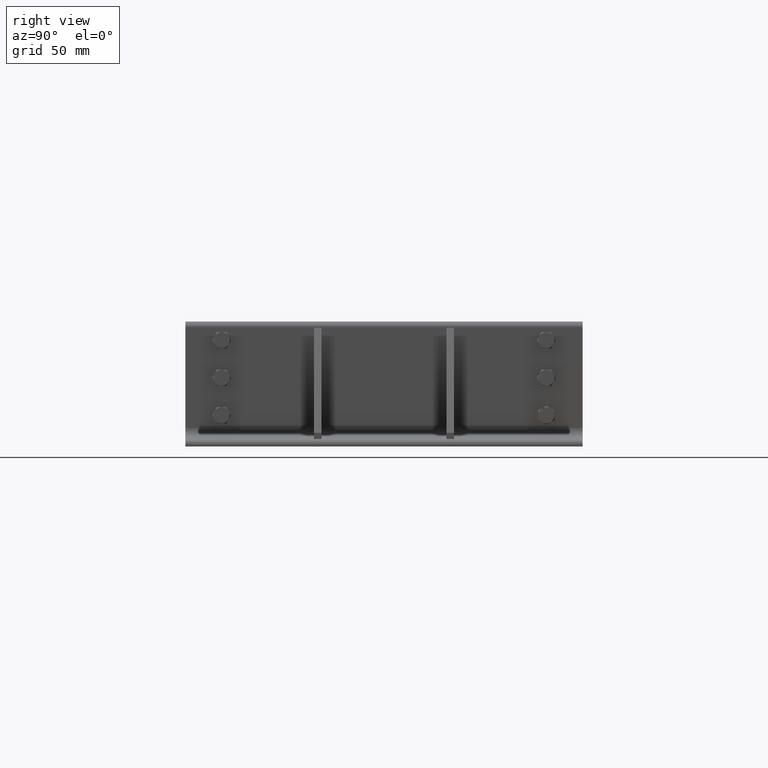
[diagram: clean part render]
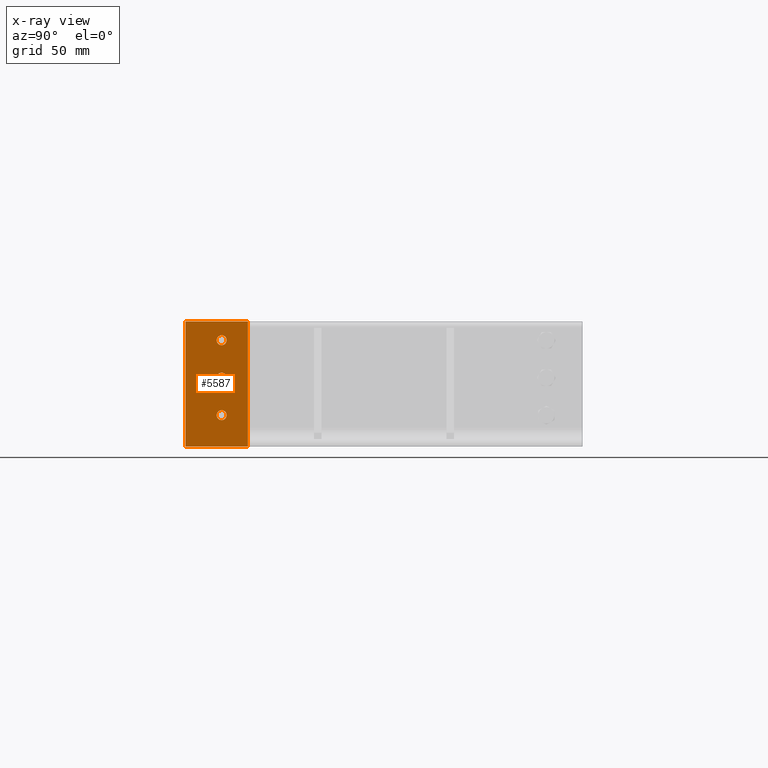
[diagram: x-ray — body ghosted, one internal face saturated and labeled with its STEP entity id]
A machine part, right view, then the same camera in x-ray: the body is ghosted and one INTERNAL B-rep face — a face not visible from any outside direction — is saturated and labeled: STEP entity #5587.
In plain terms, the highlighted planar face has unit normal (1, -0, 0).
Its self-contained STEP definition (entity closure, byte-faithful):
#5375=CARTESIAN_POINT('',(30.999999999999996,0.35,3.999999999999997));
#5376=VERTEX_POINT('',#5375);
#5377=CARTESIAN_POINT('',(34.999999999999993,0.350000000000001,3.999999999999997));
#5378=DIRECTION('',(0.0,-1.0,0.0));
#5379=DIRECTION('',(-1.0,0.0,0.0));
#5380=AXIS2_PLACEMENT_3D('',#5377,#5378,#5379);
#5381=CIRCLE('',#5380,4.0);
#5382=EDGE_CURVE('',#5376,#5376,#5381,.T.);
#5403=CARTESIAN_POINT('',(0.999999999999996,0.35,4.000000000000007));
#5404=VERTEX_POINT('',#5403);
#5405=CARTESIAN_POINT('',(4.999999999999996,0.350000000000001,4.000000000000007));
#5406=DIRECTION('',(0.0,-1.0,0.0));
#5407=DIRECTION('',(-1.0,0.0,0.0));
#5408=AXIS2_PLACEMENT_3D('',#5405,#5406,#5407);
#5409=CIRCLE('',#5408,4.0);
#5410=EDGE_CURVE('',#5404,#5404,#5409,.T.);
#5431=CARTESIAN_POINT('',(-29.000000000000004,0.35,4.000000000000016));
#5432=VERTEX_POINT('',#5431);
#5433=CARTESIAN_POINT('',(-25.000000000000004,0.350000000000001,4.000000000000016));
#5434=DIRECTION('',(0.0,-1.0,0.0));
#5435=DIRECTION('',(-1.0,0.0,0.0));
#5436=AXIS2_PLACEMENT_3D('',#5433,#5434,#5435);
#5437=CIRCLE('',#5436,4.0);
#5438=EDGE_CURVE('',#5432,#5432,#5437,.T.);
#5458=CARTESIAN_POINT('',(-50.0,0.35,25.000000000000028));
#5459=VERTEX_POINT('',#5458);
#5466=CARTESIAN_POINT('',(-50.0,0.35,-24.999999999999996));
#5467=VERTEX_POINT('',#5466);
#5468=CARTESIAN_POINT('',(-50.0,0.35,-24.999999999999986));
#5469=DIRECTION('',(0.0,0.0,1.0));
#5470=VECTOR('',#5469,50.000000000000014);
#5471=LINE('',#5468,#5470);
#5472=EDGE_CURVE('',#5467,#5459,#5471,.T.);
#5497=CARTESIAN_POINT('',(50.0,0.35,-24.999999999999996));
#5498=VERTEX_POINT('',#5497);
#5499=CARTESIAN_POINT('',(50.0,0.35,-24.999999999999996));
#5500=DIRECTION('',(-1.0,0.0,0.0));
#5501=VECTOR('',#5500,100.0);
#5502=LINE('',#5499,#5501);
#5503=EDGE_CURVE('',#5498,#5467,#5502,.T.);
#5528=CARTESIAN_POINT('',(50.0,0.35,24.999999999999996));
#5529=VERTEX_POINT('',#5528);
#5530=CARTESIAN_POINT('',(50.0,0.35,24.999999999999996));
#5531=DIRECTION('',(0.0,0.0,-1.0));
#5532=VECTOR('',#5531,49.999999999999993);
#5533=LINE('',#5530,#5532);
#5534=EDGE_CURVE('',#5529,#5498,#5533,.T.);
#5557=CARTESIAN_POINT('',(-50.0,0.35,25.000000000000028));
#5558=DIRECTION('',(1.0,0.0,0.0));
#5559=VECTOR('',#5558,100.0);
#5560=LINE('',#5557,#5559);
#5561=EDGE_CURVE('',#5459,#5529,#5560,.T.);
#5567=CARTESIAN_POINT('',(-3.552714E-015,0.35,7.105427E-015));
#5568=DIRECTION('',(0.0,1.0,0.0));
#5569=DIRECTION('',(0.0,0.0,1.0));
#5570=AXIS2_PLACEMENT_3D('',#5567,#5568,#5569);
#5571=PLANE('',#5570);
#5572=ORIENTED_EDGE('',*,*,#5561,.T.);
#5573=ORIENTED_EDGE('',*,*,#5534,.T.);
#5574=ORIENTED_EDGE('',*,*,#5503,.T.);
#5575=ORIENTED_EDGE('',*,*,#5472,.T.);
#5576=EDGE_LOOP('',(#5572,#5573,#5574,#5575));
#5577=FACE_OUTER_BOUND('',#5576,.T.);
#5578=ORIENTED_EDGE('',*,*,#5382,.T.);
#5579=EDGE_LOOP('',(#5578));
#5580=FACE_BOUND('',#5579,.T.);
#5581=ORIENTED_EDGE('',*,*,#5410,.T.);
#5582=EDGE_LOOP('',(#5581));
#5583=FACE_BOUND('',#5582,.T.);
#5584=ORIENTED_EDGE('',*,*,#5438,.T.);
#5585=EDGE_LOOP('',(#5584));
#5586=FACE_BOUND('',#5585,.T.);
#5587=ADVANCED_FACE('',(#5577,#5580,#5583,#5586),#5571,.T.);